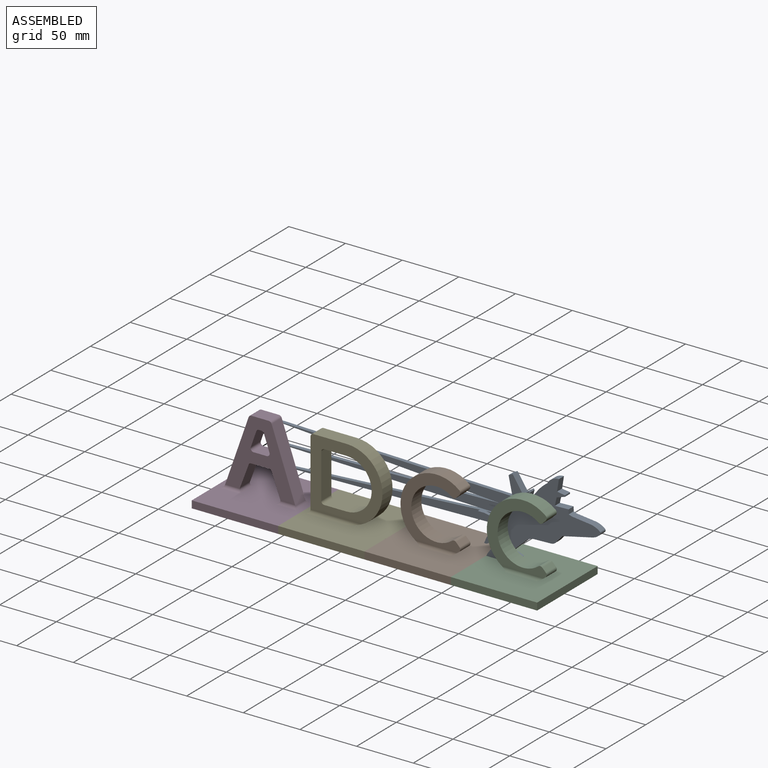
[diagram: assembled view]
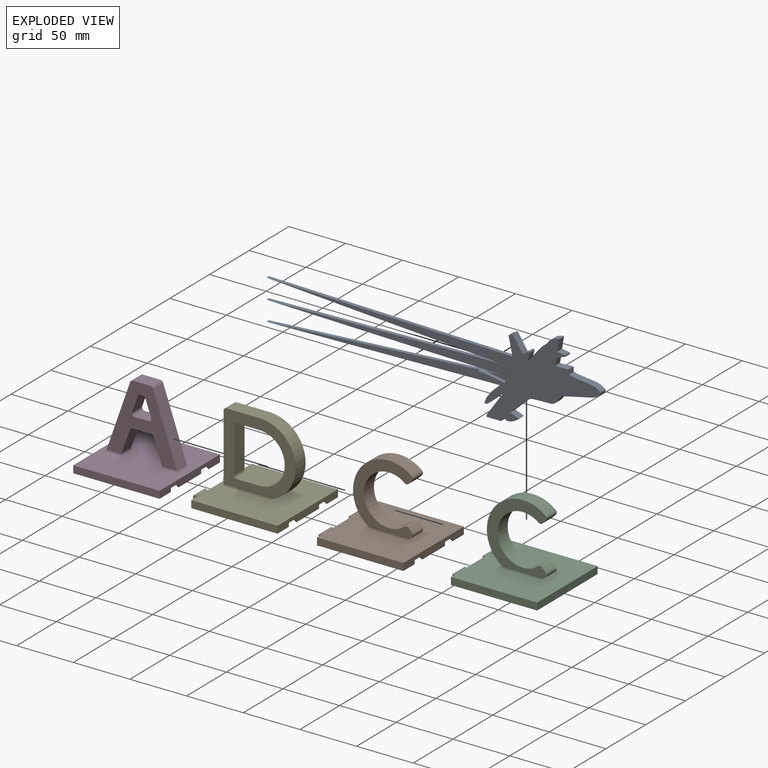
[diagram: exploded view]
GUIDED TOUR — MATED ASSEMBLY WITH SUBASSEMBLIES (Onshape document de072a0fe9083e086dc689bb, AutoMate assembly de072a0fe9083e086dc689bb_81432984981ec0570d0138be_d6e853bb6b05773cb9a21b95_default)

This assembly has 6 component occurrences arranged in 5 top-level units: 4 individual components plus 1 subassembly (S0). The tour has two levels: first the top level, where each subassembly is treated as one rigid unit; then each subassembly is toured internally in its own section (nesting deeper than one subassembly level is flattened into its subassembly's section).

Components are labeled P0..P5 across the whole record; subassembly units are labeled S0..S0. A mate is a constraint between two units; its type names the relative motion it leaves free:
  FASTENED — locks the two components together rigidly (no relative motion).
Axis/direction vectors are unit vectors and 'through' points are millimeter coordinates, both in the assembly's world frame.

TOP-LEVEL MATES (between units; each subassembly's internal mates are listed in its own section)
  1. FASTENED "Fastened 2": P2 <-> P5, direction (-1.000, 0.000, 0.000) through (21.46, -75.15, 36.04) mm
  2. FASTENED "Fastened 3": P3 <-> P2, direction (-1.000, 0.000, 0.000) through (97.66, -75.15, 36.04) mm
  3. FASTENED "Fastened 4": S0 <-> P3, direction (0.000, 0.000, -1.000) through (110.56, -46.37, 41.60) mm
  4. FASTENED "Fastened 1": P4 <-> P5, direction (0.000, -1.000, 0.000) through (-48.39, -94.20, 39.22) mm

TOP-LEVEL ASSEMBLY ORDER
  1. P3 — the base component [order verified]
  2. P2 [order verified]
  3. P5 [order verified]
  4. P4 [order verified]
  5. S0 [order verified]
Order-tag legend:
  [order verified] — this step's position reverses a verified removal order: the component was checked to insert without passing through the ones already placed.

Of the 6 component occurrences, 4 carry the full construction recipe — the FeatureScript program that regenerates the part's solid from scratch; the rest are supplied as boundary geometry only. Each toured unit is shown spotlighted twice — assembled, then exploded with a leader line back to its socket (green = recipe-attached component, orange = geometry-only, blue = subassembly unit; the rest desaturated gray).
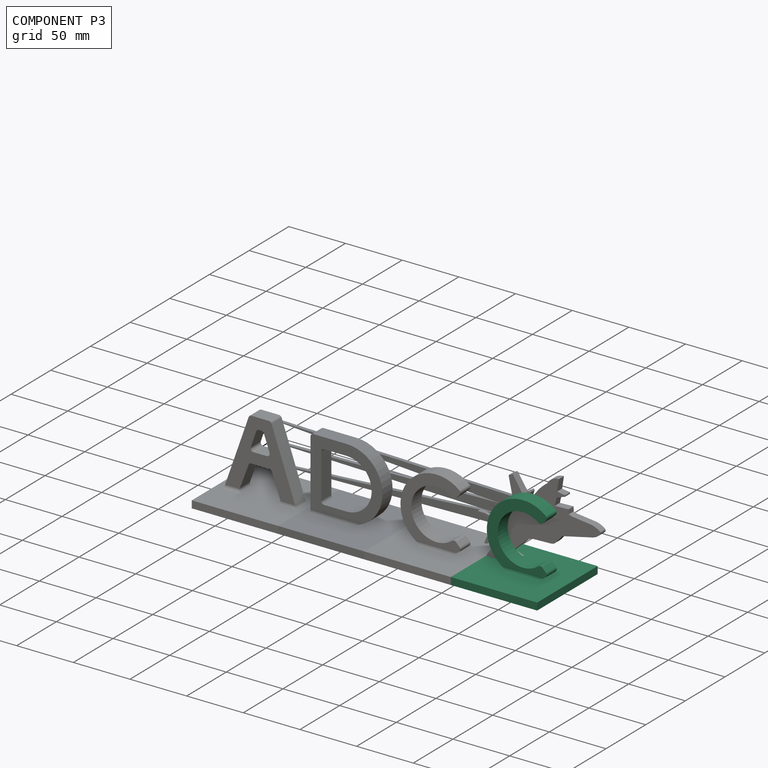
[diagram: component P3 — assembled]
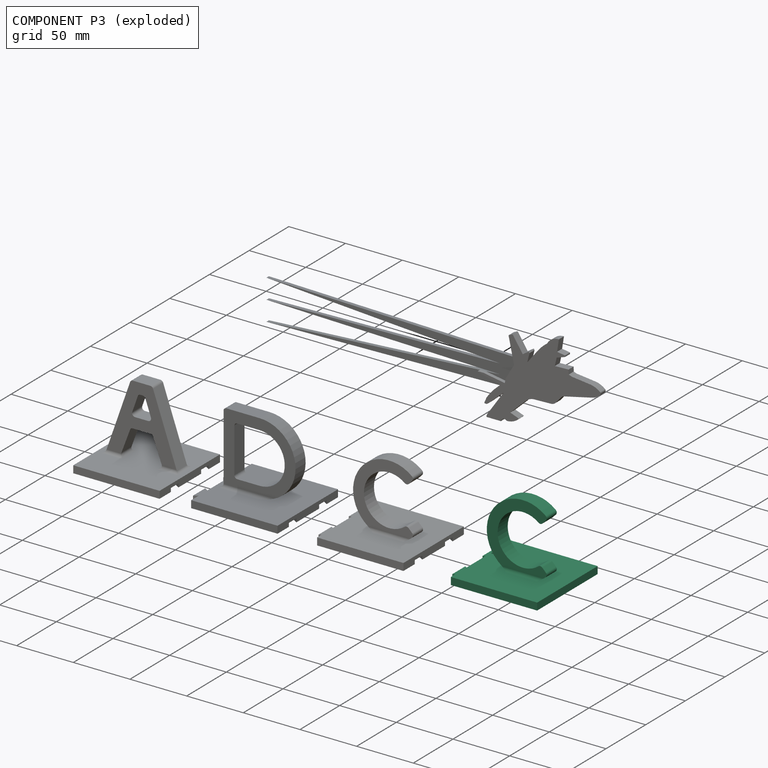
[diagram: component P3 — exploded]
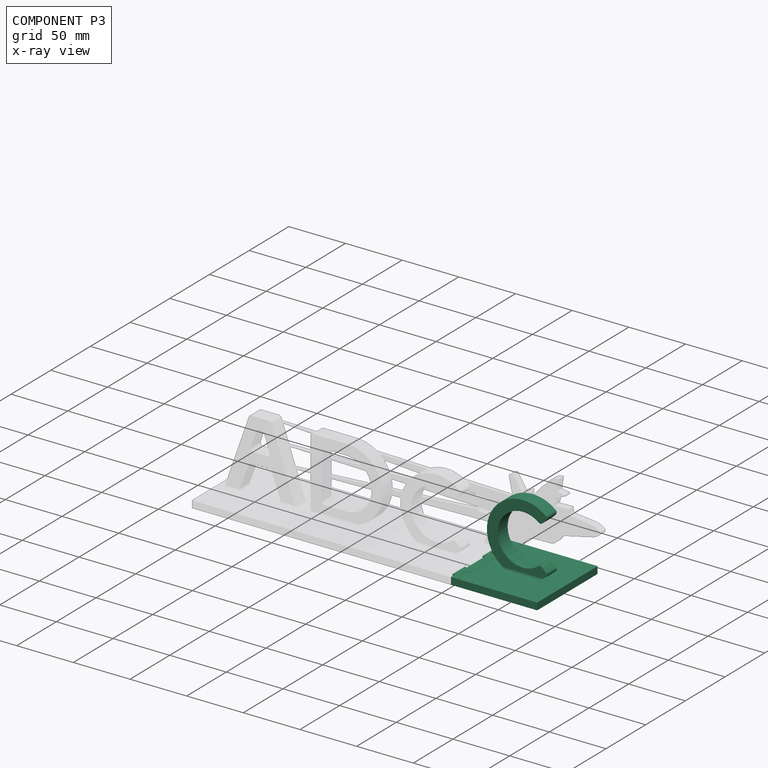
[diagram: component P3 — x-ray view]
COMPONENT P3 — recipe-attached (CADFS 00996907, mesh-verified: the recipe's output STEP matches this component's geometry to below the mesh-comparison resolution (tessellation chordal tolerance ~0.196 mm)).
Held by: FASTENED mate "Fastened 3" to P2; FASTENED mate "Fastened 4" to P0.
Construction recipe (FeatureScript — the CAD program that rebuilds this solid; sketch coordinates are in the units given by the * unit suffixes, e.g. mm):

FeatureScript 1511;
import(path : "onshape/std/geometry.fs", version : "1511.0");
import(path : "onshape/std/common.fs", version : "1511.0");
const mm = millimeter;
const VERTEX = EntityType.VERTEX;
const EDGE = EntityType.EDGE;
const FACE = EntityType.FACE;
const BODY = EntityType.BODY;
function v(x, y){return vector(x, y);}
function OD(order){return orderDisambiguation(order);}
function OSD(set){return originalSetDisambiguation(set);}
function TD(topology){return topologyDisambiguation(topology);}
function TDD(query){return trueDependencyDisambiguation(query);}
function sQuery(a, b, c) {return sketchEntityQuery(a, b, c);}

annotation { "Feature Type Name" : "Feature", "Feature Type Description" : "" }
export const myFeature = defineFeature(function(context is Context, id is Id, definition is map)
    precondition{}
    {
        {
            var Q0;
            Q0=qCreatedBy(makeId("Top.planeOp"),FACE);
            var sketch = newSketch(context, id + "F0", { "sketchPlane" : qUnion([Q0])});
            skLineSegment(sketch, "E0.bottom", {"start": v(38.1, -38.1) * mm, "end": v(-38.1, -38.1) * mm});
            skLineSegment(sketch, "E0.top", {"start": v(38.1, 38.1) * mm, "end": v(-38.1, 38.1) * mm});
            skLineSegment(sketch, "E0.left", {"start": v(38.1, -38.1) * mm, "end": v(38.1, 38.1) * mm});
            skLineSegment(sketch, "E0.right", {"start": v(-38.1, -38.1) * mm, "end": v(-38.1, 38.1) * mm});
            skPoint(sketch, "E0.middle", {"position": v(0, 0) * mm});
            skSolve(sketch);
        }
        {
            var Q0;
            Q0=qCreatedBy(makeId("Front.planeOp"),FACE);
            var sketch = newSketch(context, id + "F1", { "sketchPlane" : qUnion([Q0])});
            skArc(sketch, "E1", {"start": v(25.4, 51.25) * mm, "mid": v(-28.58, 28.58) * mm, "end": v(25.4, 5.9) * mm});
            skLineSegment(sketch, "E2", {"start": v(16.41, 60.33) * mm, "end": v(-26.64, 60.33) * mm, "construction": true});
            skLineSegment(sketch, "E3", {"start": v(-19.56, -3.18) * mm, "end": v(26.32, -3.17) * mm, "construction": true});
            skArc(sketch, "E4", {"start": v(18.73, 44.45) * mm, "mid": v(-19.05, 28.58) * mm, "end": v(18.73, 12.7) * mm});
            skLineSegment(sketch, "E5", {"start": v(25.4, 51.25) * mm, "end": v(18.73, 44.45) * mm});
            skLineSegment(sketch, "E6", {"start": v(18.73, 12.7) * mm, "end": v(25.4, 5.9) * mm});
            skLineSegment(sketch, "E7", {"start": v(18.73, 44.45) * mm, "end": v(34.7, 28.8) * mm, "construction": true});
            skSolve(sketch);
        }
        {
            var Q0;
            Q0=qSketchRegion(id+"F0",true);
            extrude(context, id + "F2", {"entities" : qUnion([Q0]), "oppositeDirection" : true, "depth" : 6.35 * mm, "offsetDistance" : 25.4 * mm});
        }
        {
            var Q0;
            Q0=qSketchRegion(id+"F1",true);
            extrude(context, id + "F3", {"entities" : qUnion([Q0]), "operationType" : NewBodyOperationType.ADD, "endBound" : BoundingType.SYMMETRIC, "depth" : 12.7 * mm, "offsetDistance" : 25.4 * mm});
        }
        {
            var Q0;
            Q0=makeQuery(id+"F3.opExtrude","SWEPT_EDGE",EDGE,{"disambiguationData":[OSD([sQuery(id+"F1.wireOp",EDGE,"E1"),sQuery(id+"F1.wireOp",EDGE,"E5")])]});
            var Q1;
            Q1=makeQuery(id+"F3.opExtrude","SWEPT_EDGE",EDGE,{"disambiguationData":[OSD([sQuery(id+"F1.wireOp",EDGE,"E4"),sQuery(id+"F1.wireOp",EDGE,"E5")])]});
            var Q2;
            Q2=makeQuery(id+"F3.opExtrude","SWEPT_EDGE",EDGE,{"disambiguationData":[OSD([sQuery(id+"F1.wireOp",EDGE,"E4"),sQuery(id+"F1.wireOp",EDGE,"E6")])]});
            var Q3;
            Q3=makeQuery(id+"F3.opExtrude","SWEPT_EDGE",EDGE,{"disambiguationData":[OSD([sQuery(id+"F1.wireOp",EDGE,"E1"),sQuery(id+"F1.wireOp",EDGE,"E6")])]});
            var Q4;
            Q4=makeQuery(id+"F3.boolean.opBoolean","INTERSECT",EDGE,{"derivedFrom":[makeQuery(id+"F2.opExtrude","CAP_FACE",FACE,{"disambiguationData":[OSD([sQuery(id+"F0.wireOp",EDGE,"E0.bottom"),sQuery(id+"F0.wireOp",EDGE,"E0.top"),sQuery(id+"F0.wireOp",EDGE,"E0.left"),sQuery(id+"F0.wireOp",EDGE,"E0.right")])],"isStart":true}),makeQuery(id+"F3.opExtrude","CAP_FACE",FACE,{"disambiguationData":[OSD([sQuery(id+"F1.wireOp",EDGE,"E1"),sQuery(id+"F1.wireOp",EDGE,"E4"),sQuery(id+"F1.wireOp",EDGE,"E5"),sQuery(id+"F1.wireOp",EDGE,"E6")])],"isStart":false})]});
            var Q5;
            Q5=makeQuery(id+"F3.boolean.opBoolean","INTERSECT",EDGE,{"derivedFrom":[makeQuery(id+"F2.opExtrude","CAP_FACE",FACE,{"disambiguationData":[OSD([sQuery(id+"F0.wireOp",EDGE,"E0.bottom"),sQuery(id+"F0.wireOp",EDGE,"E0.top"),sQuery(id+"F0.wireOp",EDGE,"E0.left"),sQuery(id+"F0.wireOp",EDGE,"E0.right")])],"isStart":true}),makeQuery(id+"F3.opExtrude","CAP_FACE",FACE,{"disambiguationData":[OSD([sQuery(id+"F1.wireOp",EDGE,"E1"),sQuery(id+"F1.wireOp",EDGE,"E4"),sQuery(id+"F1.wireOp",EDGE,"E5"),sQuery(id+"F1.wireOp",EDGE,"E6")])],"isStart":true})]});
            fillet(context, id + "F4", {"entities" : qUnion([Q0, Q1, Q2, Q3, Q4, Q5]), "radius" : 2.54 * mm, "tangentPropagation" : true, "allowEdgeOverflow" : false});
        }
        {
            var Q0;
            Q0=makeQuery(id+"F2.opExtrude","CAP_FACE",FACE,{"disambiguationData":[OSD([sQuery(id+"F0.wireOp",EDGE,"E0.bottom"),sQuery(id+"F0.wireOp",EDGE,"E0.top"),sQuery(id+"F0.wireOp",EDGE,"E0.left"),sQuery(id+"F0.wireOp",EDGE,"E0.right")])],"isStart":false});
            var sketch = newSketch(context, id + "F5", { "sketchPlane" : qUnion([Q0])});
            skLineSegment(sketch, "E8", {"start": v(-38.1, 23.61) * mm, "end": v(-38.1, 14.49) * mm});
            skLineSegment(sketch, "E9", {"start": v(-38.1, 14.49) * mm, "end": v(-44.45, 10.82) * mm});
            skLineSegment(sketch, "E10", {"start": v(-44.45, 10.82) * mm, "end": v(-44.45, 27.28) * mm});
            skLineSegment(sketch, "E11", {"start": v(-44.45, 27.28) * mm, "end": v(-38.1, 23.61) * mm});
            skLineSegment(sketch, "E12", {"start": v(-38.1, 19.05) * mm, "end": v(-38.1, 38.1) * mm, "construction": true});
            skLineSegment(sketch, "E13.MirrorCS", {"start": v(-38.1, -14.49) * mm, "end": v(-44.45, -10.82) * mm});
            skLineSegment(sketch, "E14.MirrorCS", {"start": v(-44.45, -10.82) * mm, "end": v(-44.45, -27.28) * mm});
            skLineSegment(sketch, "E15.MirrorCS", {"start": v(-38.1, -23.61) * mm, "end": v(-38.1, -14.49) * mm});
            skLineSegment(sketch, "E16.MirrorCS", {"start": v(-44.45, -27.28) * mm, "end": v(-38.1, -23.61) * mm});
            skSolve(sketch);
        }
        {
            var Q0;
            Q0=qSketchRegion(id+"F5",true);
            extrude(context, id + "F6", {"entities" : qUnion([Q0]), "operationType" : NewBodyOperationType.ADD, "oppositeDirection" : true, "depth" : 2.78 * mm, "offsetDistance" : 25.4 * mm});
        }
        {
            var Q0;
            Q0=makeQuery(id+"F2.opExtrude","CAP_FACE",FACE,{"disambiguationData":[OSD([sQuery(id+"F0.wireOp",EDGE,"E0.bottom"),sQuery(id+"F0.wireOp",EDGE,"E0.top"),sQuery(id+"F0.wireOp",EDGE,"E0.left"),sQuery(id+"F0.wireOp",EDGE,"E0.right")])],"isStart":true});
            var sketch = newSketch(context, id + "F7", { "sketchPlane" : qUnion([Q0])});
            skLineSegment(sketch, "E17", {"start": v(-38.1, 6.35) * mm, "end": v(38.1, 6.35) * mm, "construction": true});
            skLineSegment(sketch, "E18.bottom", {"start": v(-38.1, 6.35) * mm, "end": v(-25, 6.35) * mm});
            skLineSegment(sketch, "E18.top", {"start": v(-38.1, 13.1) * mm, "end": v(-25, 13.1) * mm});
            skLineSegment(sketch, "E18.left", {"start": v(-38.1, 6.35) * mm, "end": v(-38.1, 13.1) * mm});
            skLineSegment(sketch, "E18.right", {"start": v(-25, 6.35) * mm, "end": v(-25, 13.1) * mm});
            skSolve(sketch);
        }
        {
            var Q0;
            Q0 = qSketchRegion(id + "F7", true);
            extrude(context, id + "F8", {"entities" : qUnion([Q0]), "operationType" : NewBodyOperationType.REMOVE, "oppositeDirection" : true, "depth" : 0.8 * mm, "offsetDistance" : 25.4 * mm});
        }
    });
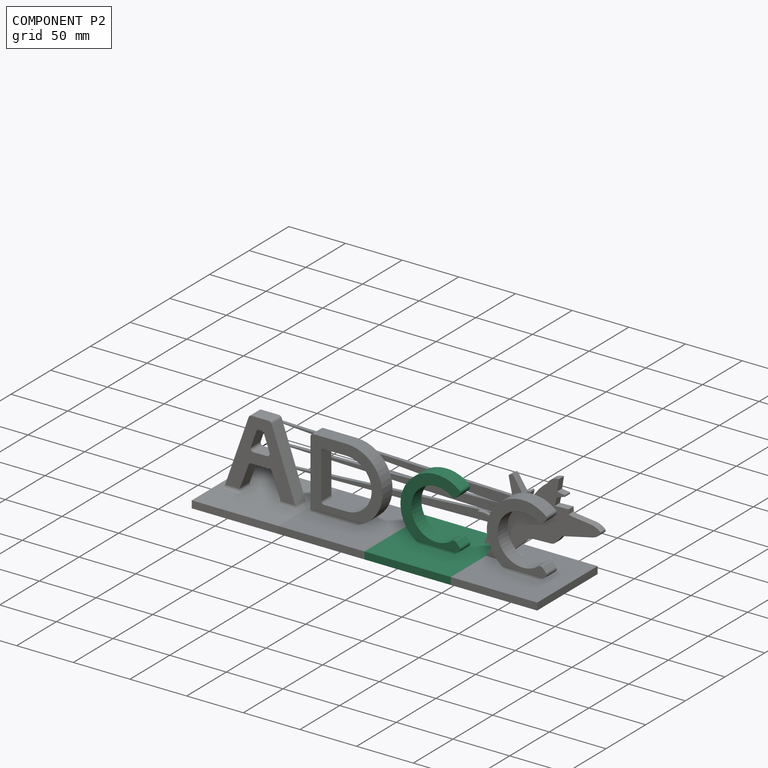
[diagram: component P2 — assembled]
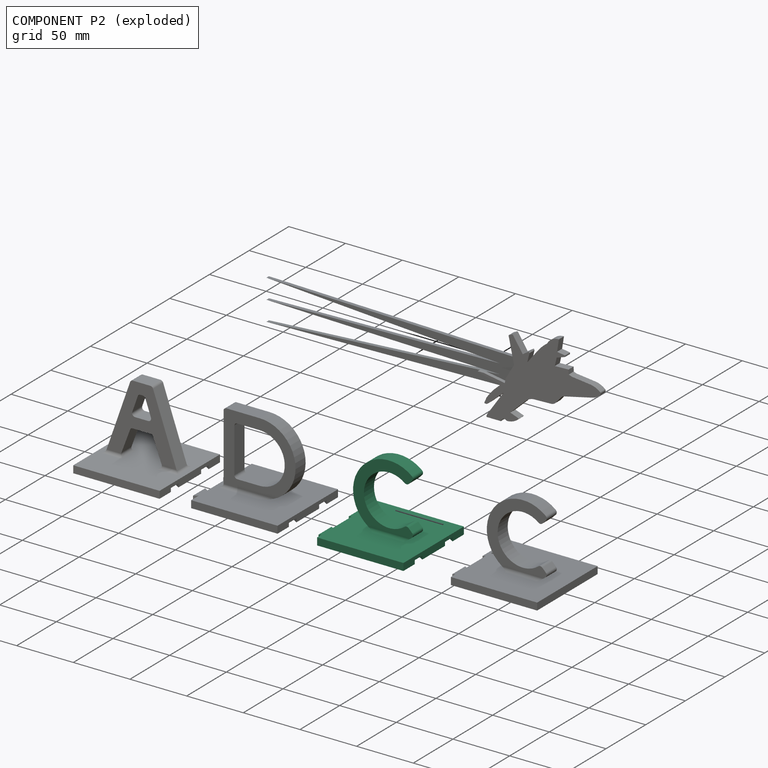
[diagram: component P2 — exploded]
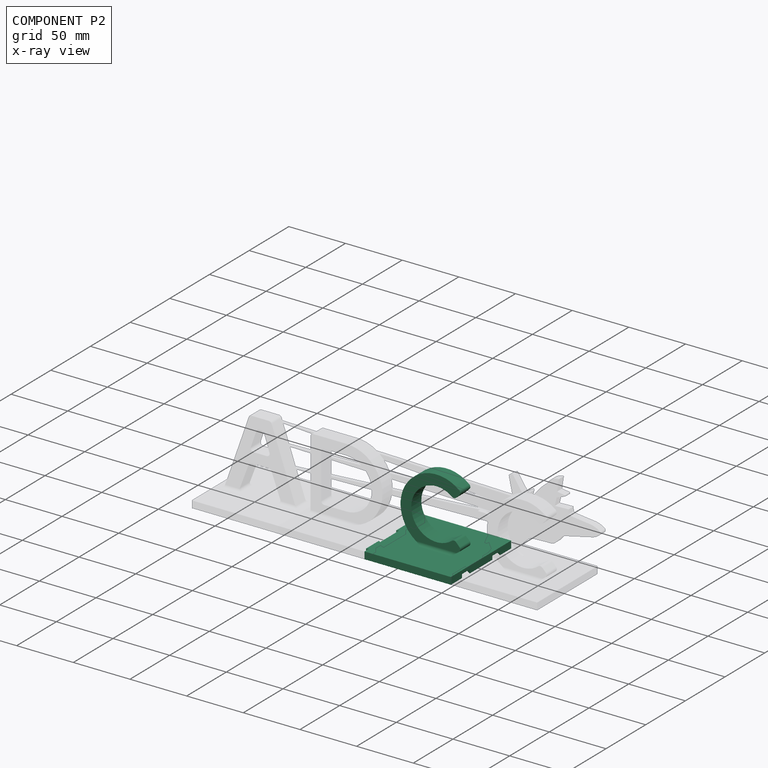
[diagram: component P2 — x-ray view]
COMPONENT P2 — recipe-attached (CADFS 00996906, mesh-verified: the recipe's output STEP matches this component's geometry to below the mesh-comparison resolution (tessellation chordal tolerance ~0.196 mm)).
Held by: FASTENED mate "Fastened 2" to P5; FASTENED mate "Fastened 3" to P3.
Construction recipe (FeatureScript — the CAD program that rebuilds this solid; sketch coordinates are in the units given by the * unit suffixes, e.g. mm):

FeatureScript 1511;
import(path : "onshape/std/geometry.fs", version : "1511.0");
import(path : "onshape/std/common.fs", version : "1511.0");
const mm = millimeter;
const VERTEX = EntityType.VERTEX;
const EDGE = EntityType.EDGE;
const FACE = EntityType.FACE;
const BODY = EntityType.BODY;
function v(x, y){return vector(x, y);}
function OD(order){return orderDisambiguation(order);}
function OSD(set){return originalSetDisambiguation(set);}
function TD(topology){return topologyDisambiguation(topology);}
function TDD(query){return trueDependencyDisambiguation(query);}
function sQuery(a, b, c) {return sketchEntityQuery(a, b, c);}

annotation { "Feature Type Name" : "Feature", "Feature Type Description" : "" }
export const myFeature = defineFeature(function(context is Context, id is Id, definition is map)
    precondition{}
    {
        {
            var Q0;
            Q0=qCreatedBy(makeId("Top.planeOp"),FACE);
            var sketch = newSketch(context, id + "F0", { "sketchPlane" : qUnion([Q0])});
            skLineSegment(sketch, "E0.bottom", {"start": v(38.1, -38.1) * mm, "end": v(-38.1, -38.1) * mm});
            skLineSegment(sketch, "E0.top", {"start": v(38.1, 38.1) * mm, "end": v(-38.1, 38.1) * mm});
            skLineSegment(sketch, "E0.left", {"start": v(38.1, -38.1) * mm, "end": v(38.1, 38.1) * mm});
            skLineSegment(sketch, "E0.right", {"start": v(-38.1, -38.1) * mm, "end": v(-38.1, 38.1) * mm});
            skPoint(sketch, "E0.middle", {"position": v(0, 0) * mm});
            skSolve(sketch);
        }
        {
            var Q0;
            Q0=qCreatedBy(makeId("Front.planeOp"),FACE);
            var sketch = newSketch(context, id + "F1", { "sketchPlane" : qUnion([Q0])});
            skArc(sketch, "E1", {"start": v(25.4, 51.25) * mm, "mid": v(-28.58, 28.58) * mm, "end": v(25.4, 5.9) * mm});
            skLineSegment(sketch, "E2", {"start": v(16.41, 60.33) * mm, "end": v(-26.64, 60.33) * mm, "construction": true});
            skLineSegment(sketch, "E3", {"start": v(-19.56, -3.18) * mm, "end": v(26.32, -3.17) * mm, "construction": true});
            skArc(sketch, "E4", {"start": v(18.73, 44.45) * mm, "mid": v(-19.05, 28.58) * mm, "end": v(18.73, 12.7) * mm});
            skLineSegment(sketch, "E5", {"start": v(25.4, 51.25) * mm, "end": v(18.73, 44.45) * mm});
            skLineSegment(sketch, "E6", {"start": v(18.73, 12.7) * mm, "end": v(25.4, 5.9) * mm});
            skLineSegment(sketch, "E7", {"start": v(18.73, 44.45) * mm, "end": v(34.7, 28.8) * mm, "construction": true});
            skSolve(sketch);
        }
        {
            var Q0;
            Q0=qSketchRegion(id+"F0",true);
            extrude(context, id + "F2", {"entities" : qUnion([Q0]), "oppositeDirection" : true, "depth" : 6.35 * mm, "offsetDistance" : 25.4 * mm});
        }
        {
            var Q0;
            Q0=qSketchRegion(id+"F1",true);
            extrude(context, id + "F3", {"entities" : qUnion([Q0]), "operationType" : NewBodyOperationType.ADD, "endBound" : BoundingType.SYMMETRIC, "depth" : 12.7 * mm, "offsetDistance" : 25.4 * mm});
        }
        {
            var Q0;
            Q0=makeQuery(id+"F3.opExtrude","SWEPT_EDGE",EDGE,{"disambiguationData":[OSD([sQuery(id+"F1.wireOp",EDGE,"E1"),sQuery(id+"F1.wireOp",EDGE,"E5")])]});
            var Q1;
            Q1=makeQuery(id+"F3.opExtrude","SWEPT_EDGE",EDGE,{"disambiguationData":[OSD([sQuery(id+"F1.wireOp",EDGE,"E4"),sQuery(id+"F1.wireOp",EDGE,"E5")])]});
            var Q2;
            Q2=makeQuery(id+"F3.opExtrude","SWEPT_EDGE",EDGE,{"disambiguationData":[OSD([sQuery(id+"F1.wireOp",EDGE,"E4"),sQuery(id+"F1.wireOp",EDGE,"E6")])]});
            var Q3;
            Q3=makeQuery(id+"F3.opExtrude","SWEPT_EDGE",EDGE,{"disambiguationData":[OSD([sQuery(id+"F1.wireOp",EDGE,"E1"),sQuery(id+"F1.wireOp",EDGE,"E6")])]});
            var Q4;
            Q4=makeQuery(id+"F3.boolean.opBoolean","INTERSECT",EDGE,{"derivedFrom":[makeQuery(id+"F2.opExtrude","CAP_FACE",FACE,{"disambiguationData":[OSD([sQuery(id+"F0.wireOp",EDGE,"E0.bottom"),sQuery(id+"F0.wireOp",EDGE,"E0.top"),sQuery(id+"F0.wireOp",EDGE,"E0.left"),sQuery(id+"F0.wireOp",EDGE,"E0.right")])],"isStart":true}),makeQuery(id+"F3.opExtrude","CAP_FACE",FACE,{"disambiguationData":[OSD([sQuery(id+"F1.wireOp",EDGE,"E1"),sQuery(id+"F1.wireOp",EDGE,"E4"),sQuery(id+"F1.wireOp",EDGE,"E5"),sQuery(id+"F1.wireOp",EDGE,"E6")])],"isStart":false})]});
            var Q5;
            Q5=makeQuery(id+"F3.boolean.opBoolean","INTERSECT",EDGE,{"derivedFrom":[makeQuery(id+"F2.opExtrude","CAP_FACE",FACE,{"disambiguationData":[OSD([sQuery(id+"F0.wireOp",EDGE,"E0.bottom"),sQuery(id+"F0.wireOp",EDGE,"E0.top"),sQuery(id+"F0.wireOp",EDGE,"E0.left"),sQuery(id+"F0.wireOp",EDGE,"E0.right")])],"isStart":true}),makeQuery(id+"F3.opExtrude","CAP_FACE",FACE,{"disambiguationData":[OSD([sQuery(id+"F1.wireOp",EDGE,"E1"),sQuery(id+"F1.wireOp",EDGE,"E4"),sQuery(id+"F1.wireOp",EDGE,"E5"),sQuery(id+"F1.wireOp",EDGE,"E6")])],"isStart":true})]});
            fillet(context, id + "F4", {"entities" : qUnion([Q0, Q1, Q2, Q3, Q4, Q5]), "radius" : 2.54 * mm, "tangentPropagation" : true, "allowEdgeOverflow" : false});
        }
        {
            var Q0;
            Q0=makeQuery(id+"F2.opExtrude","CAP_FACE",FACE,{"disambiguationData":[OSD([sQuery(id+"F0.wireOp",EDGE,"E0.bottom"),sQuery(id+"F0.wireOp",EDGE,"E0.top"),sQuery(id+"F0.wireOp",EDGE,"E0.left"),sQuery(id+"F0.wireOp",EDGE,"E0.right")])],"isStart":false});
            var sketch = newSketch(context, id + "F5", { "sketchPlane" : qUnion([Q0])});
            skLineSegment(sketch, "E8", {"start": v(38.1, 23.81) * mm, "end": v(31.75, 27.48) * mm});
            skLineSegment(sketch, "E9", {"start": v(31.75, 27.48) * mm, "end": v(31.75, 10.62) * mm});
            skLineSegment(sketch, "E10", {"start": v(31.75, 10.62) * mm, "end": v(38.1, 14.29) * mm});
            skLineSegment(sketch, "E11", {"start": v(38.1, 14.29) * mm, "end": v(38.1, 23.81) * mm});
            skLineSegment(sketch, "E12", {"start": v(38.1, 19.05) * mm, "end": v(38.1, 38.1) * mm, "construction": true});
            skLineSegment(sketch, "E13.MirrorCS", {"start": v(31.75, -27.48) * mm, "end": v(31.75, -10.62) * mm});
            skLineSegment(sketch, "E14.MirrorCS", {"start": v(38.1, -23.81) * mm, "end": v(31.75, -27.48) * mm});
            skLineSegment(sketch, "E15.MirrorCS", {"start": v(38.1, -14.29) * mm, "end": v(38.1, -23.81) * mm});
            skLineSegment(sketch, "E16.MirrorCS", {"start": v(31.75, -10.62) * mm, "end": v(38.1, -14.29) * mm});
            skSolve(sketch);
        }
        {
            var Q0;
            Q0=qSketchRegion(id+"F5",true);
            extrude(context, id + "F6", {"entities" : qUnion([Q0]), "operationType" : NewBodyOperationType.REMOVE, "oppositeDirection" : true, "depth" : 3.17 * mm, "offsetDistance" : 25.4 * mm});
        }
        {
            var Q0;
            Q0=makeQuery(id+"F2.opExtrude","CAP_FACE",FACE,{"disambiguationData":[OSD([sQuery(id+"F0.wireOp",EDGE,"E0.bottom"),sQuery(id+"F0.wireOp",EDGE,"E0.top"),sQuery(id+"F0.wireOp",EDGE,"E0.left"),sQuery(id+"F0.wireOp",EDGE,"E0.right")])],"isStart":false});
            var sketch = newSketch(context, id + "F7", { "sketchPlane" : qUnion([Q0])});
            skLineSegment(sketch, "E17", {"start": v(-38.1, 23.61) * mm, "end": v(-38.1, 14.49) * mm});
            skLineSegment(sketch, "E18", {"start": v(-38.1, 14.49) * mm, "end": v(-44.45, 10.82) * mm});
            skLineSegment(sketch, "E19", {"start": v(-44.45, 10.82) * mm, "end": v(-44.45, 27.28) * mm});
            skLineSegment(sketch, "E20", {"start": v(-44.45, 27.28) * mm, "end": v(-38.1, 23.61) * mm});
            skLineSegment(sketch, "E21", {"start": v(-38.1, 19.05) * mm, "end": v(-38.1, 38.1) * mm, "construction": true});
            skLineSegment(sketch, "E22.MirrorCS", {"start": v(-38.1, -14.49) * mm, "end": v(-44.45, -10.82) * mm});
            skLineSegment(sketch, "E23.MirrorCS", {"start": v(-44.45, -10.82) * mm, "end": v(-44.45, -27.28) * mm});
            skLineSegment(sketch, "E24.MirrorCS", {"start": v(-38.1, -23.61) * mm, "end": v(-38.1, -14.49) * mm});
            skLineSegment(sketch, "E25.MirrorCS", {"start": v(-44.45, -27.28) * mm, "end": v(-38.1, -23.61) * mm});
            skSolve(sketch);
        }
        {
            var Q0;
            Q0 = qSketchRegion(id + "F7", true);
            extrude(context, id + "F8", {"entities" : qUnion([Q0]), "operationType" : NewBodyOperationType.ADD, "oppositeDirection" : true, "depth" : 2.78 * mm, "offsetDistance" : 25.4 * mm});
        }
    });
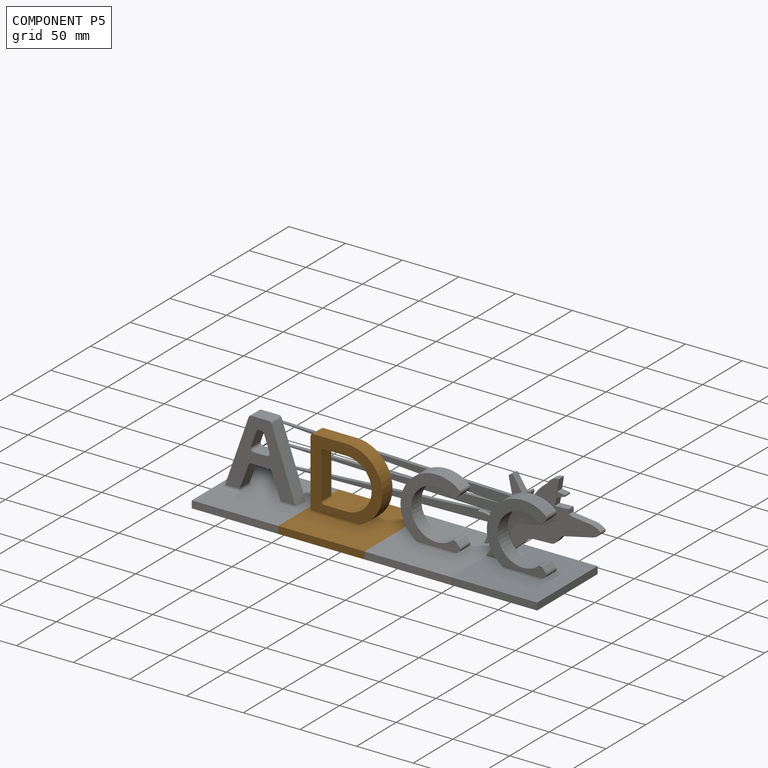
[diagram: component P5 — assembled]
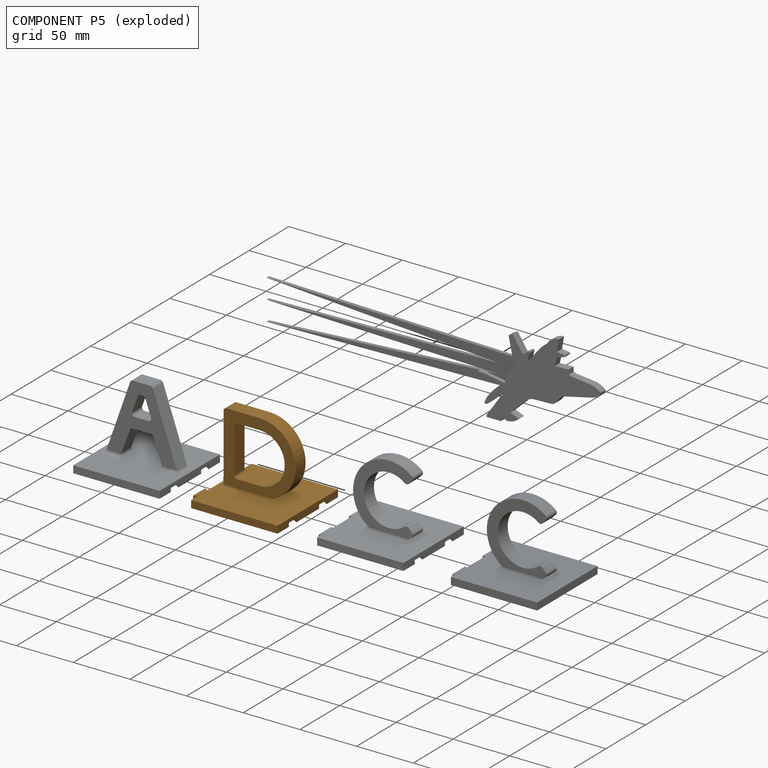
[diagram: component P5 — exploded]
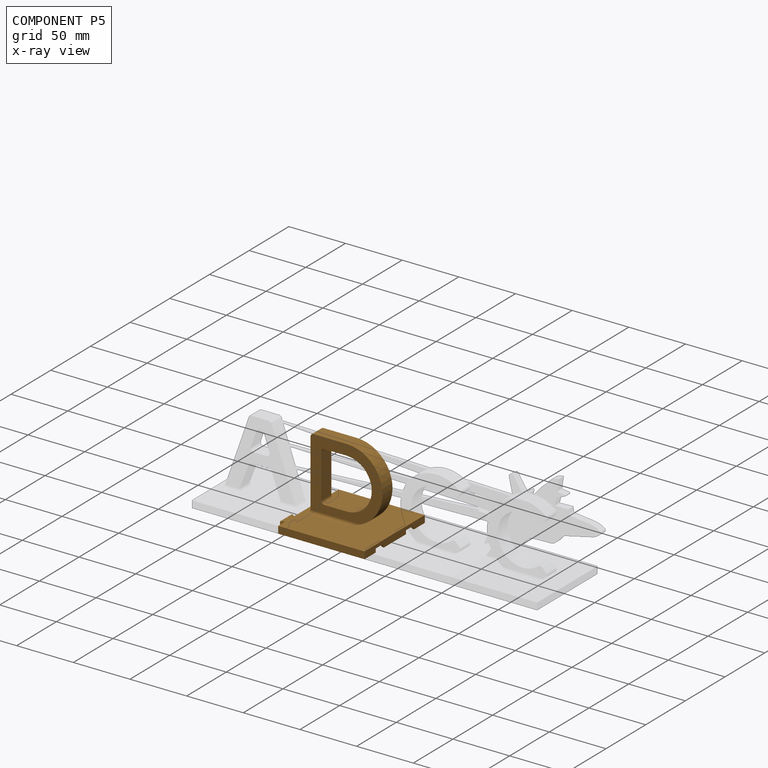
[diagram: component P5 — x-ray view]
COMPONENT P5 — geometry summary (no construction recipe available for this part):
  bounding box: 82.6 x 76.2 x 69.9 mm
  B-rep topology: 1 solid, 37 faces, 200 edges
  volume: 60379 mm^3 (14% of its bounding box)
  symmetry: mirror-symmetric across its y mid-plane
Held by: FASTENED mate "Fastened 2" to P2; FASTENED mate "Fastened 1" to P4.
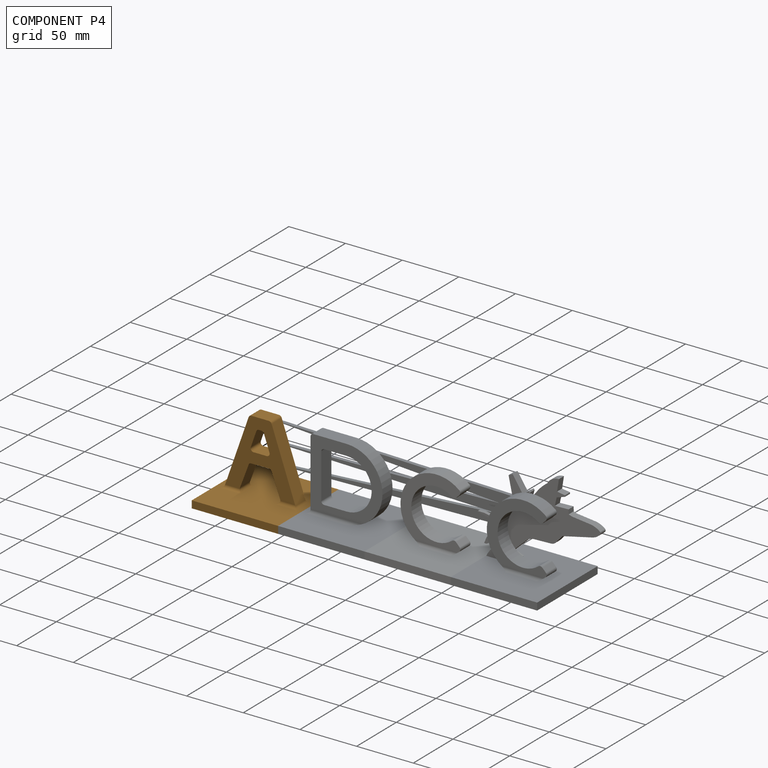
[diagram: component P4 — assembled]
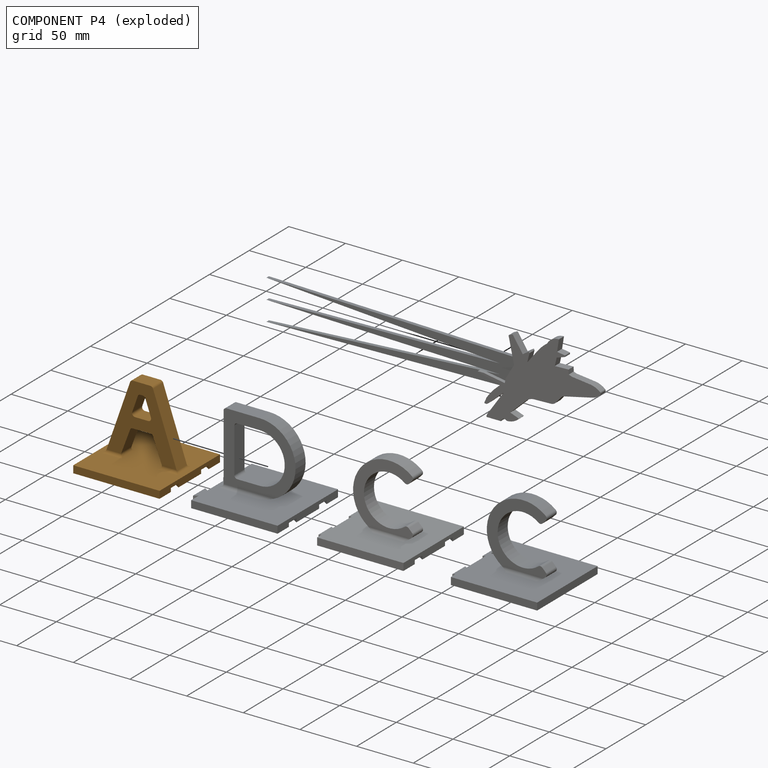
[diagram: component P4 — exploded]
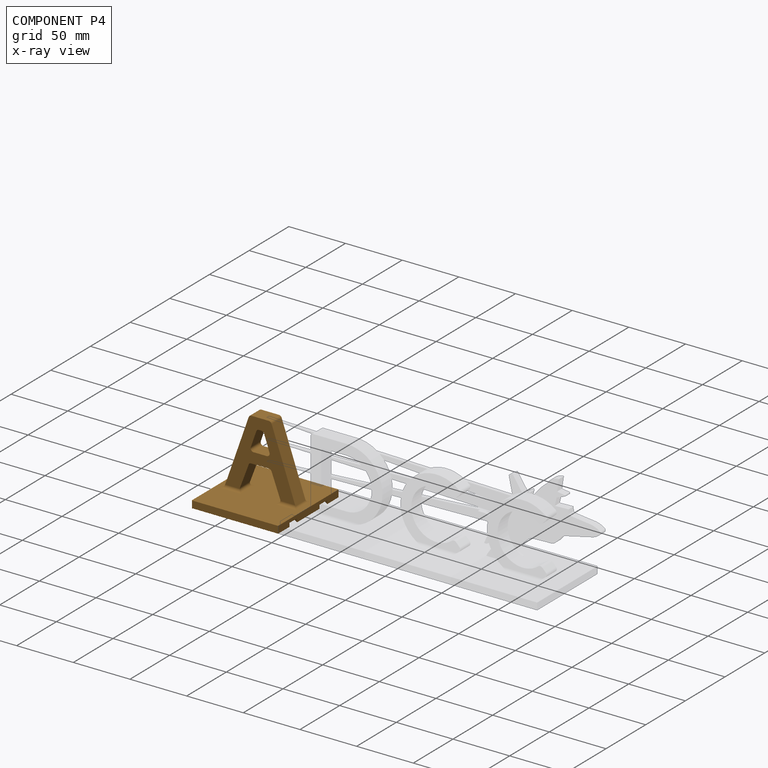
[diagram: component P4 — x-ray view]
COMPONENT P4 — geometry summary (no construction recipe available for this part):
  bounding box: 76.2 x 76.2 x 69.9 mm
  B-rep topology: 1 solid, 42 faces, 240 edges
  volume: 57723 mm^3 (14% of its bounding box)
  symmetry: mirror-symmetric across its y mid-plane
Held by: FASTENED mate "Fastened 1" to P5.
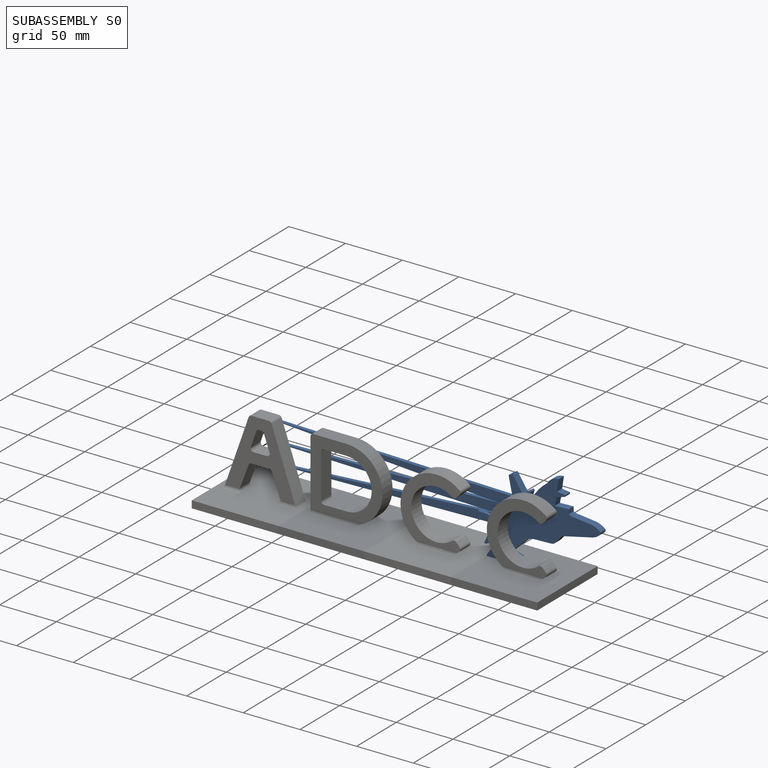
[diagram: subassembly S0 — assembled]
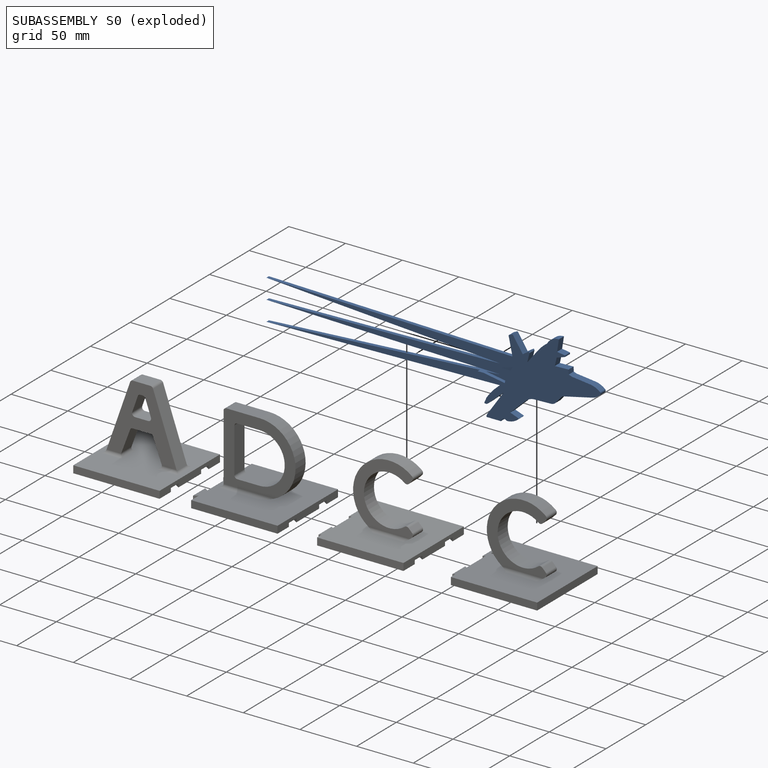
[diagram: subassembly S0 — exploded]
SUBASSEMBLY S0 — 2 components (P0, P1), of which 2 recipe-attached; toured below.
Held by: FASTENED mate "Fastened 4" to P3.
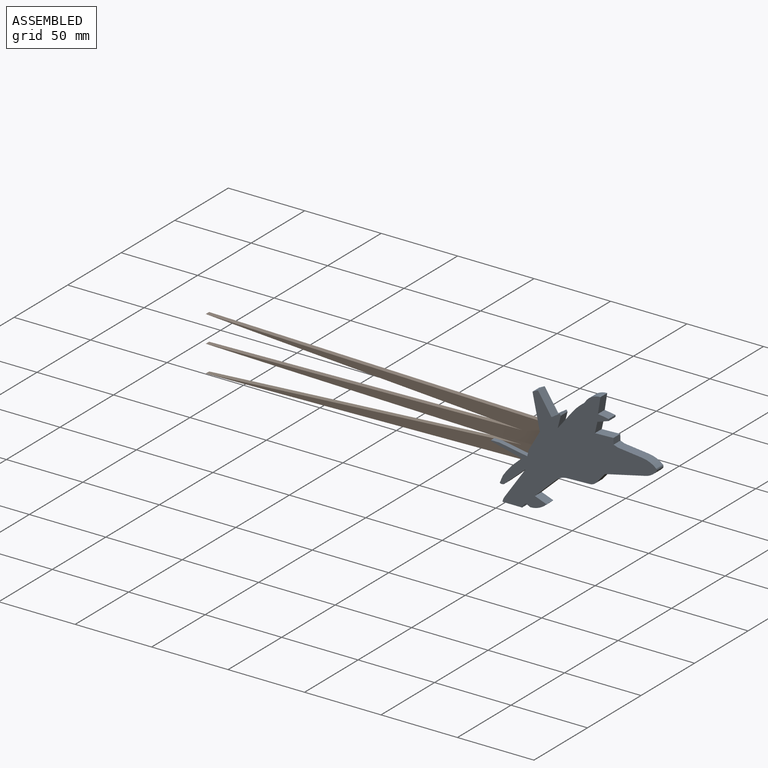
[diagram: subassembly S0 — assembled view]
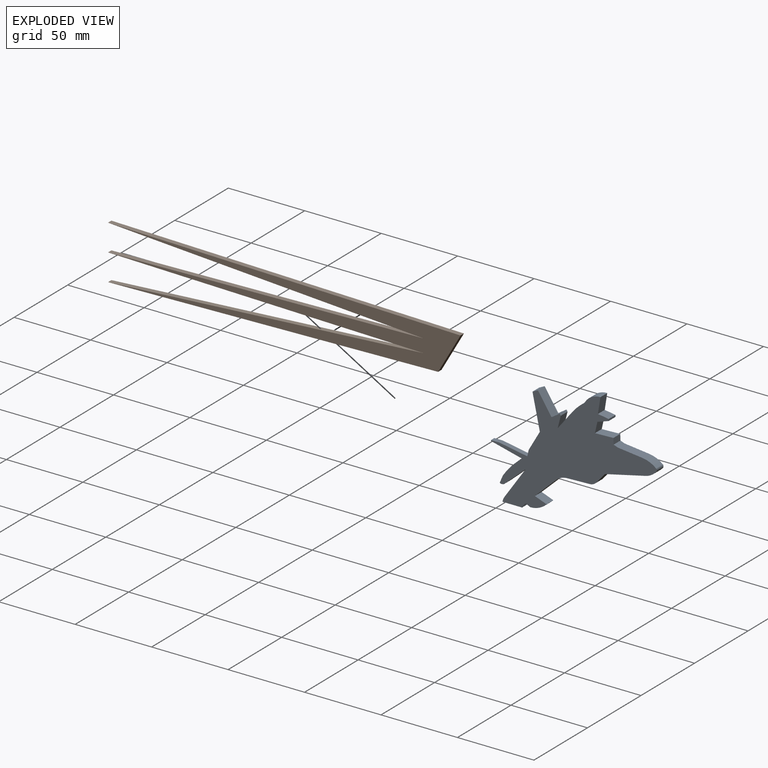
[diagram: subassembly S0 — exploded view]
SUBASSEMBLY S0 TOUR — 2 components, shown here in isolation at its own camera.

INTERNAL MATES
  1. FASTENED "Fastened 1": P1 <-> P0, direction (0.866, 0.000, -0.500) through (131.01, -44.78, 81.12) mm
  2. FASTENED "Fastened 1": P1 <-> P0, direction (0.866, 0.000, -0.500) through (131.01, -44.78, 81.12) mm

ASSEMBLY ORDER (within the subassembly)
  1. P0 — the base component [order verified]
  2. P1 [order verified]
Order-tag legend:
  [order verified] — this step's position reverses a verified removal order: the component was checked to insert without passing through the ones already placed.
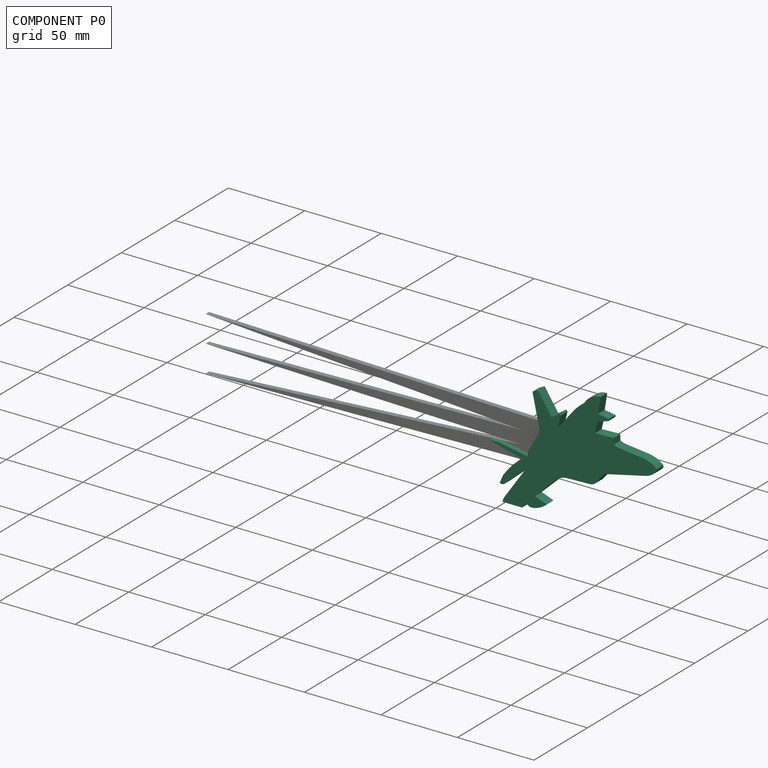
[diagram: component P0 — assembled]
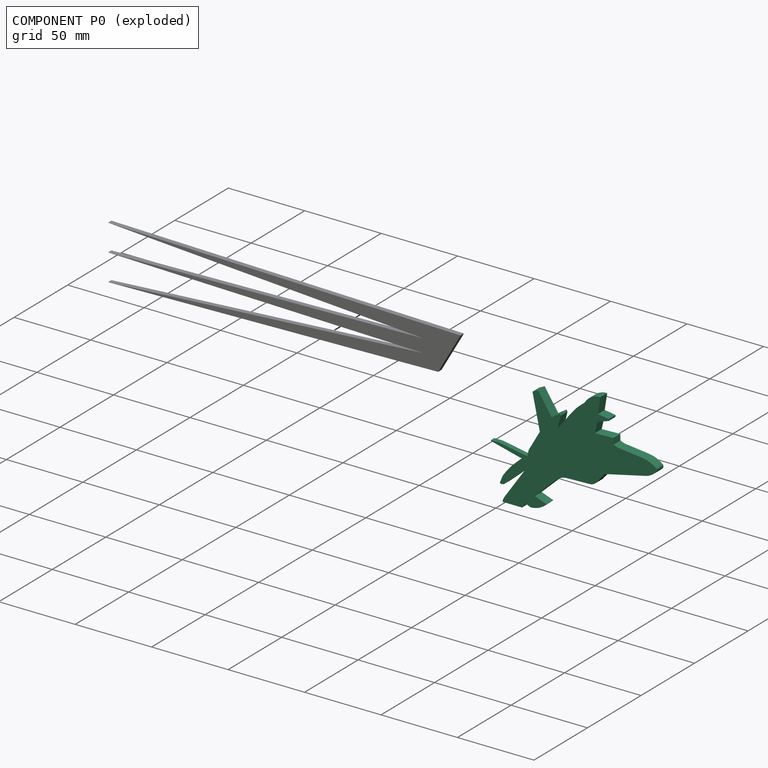
[diagram: component P0 — exploded]
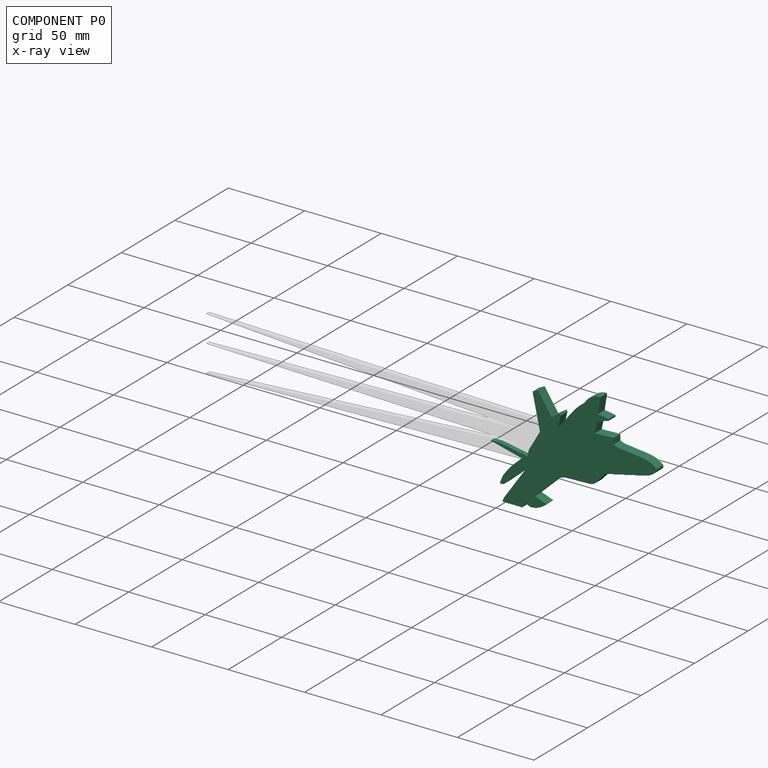
[diagram: component P0 — x-ray view]
COMPONENT P0 — recipe-attached (CADFS 00996909, mesh-verified: the recipe's output STEP matches this component's geometry to below the mesh-comparison resolution (tessellation chordal tolerance ~0.201 mm)).
Held by: FASTENED mate "Fastened 1" to P1; FASTENED mate "Fastened 1" to P1.
Construction recipe (FeatureScript — the CAD program that rebuilds this solid; sketch coordinates are in the units given by the * unit suffixes, e.g. mm):

FeatureScript 1511;
import(path : "onshape/std/geometry.fs", version : "1511.0");
import(path : "onshape/std/common.fs", version : "1511.0");
const mm = millimeter;
const VERTEX = EntityType.VERTEX;
const EDGE = EntityType.EDGE;
const FACE = EntityType.FACE;
const BODY = EntityType.BODY;
function v(x, y){return vector(x, y);}
function OD(order){return orderDisambiguation(order);}
function OSD(set){return originalSetDisambiguation(set);}
function TD(topology){return topologyDisambiguation(topology);}
function TDD(query){return trueDependencyDisambiguation(query);}
function sQuery(a, b, c) {return sketchEntityQuery(a, b, c);}

annotation { "Feature Type Name" : "Feature", "Feature Type Description" : "" }
export const myFeature = defineFeature(function(context is Context, id is Id, definition is map)
    precondition{}
    {
        {
            var Q0;
            Q0=qCreatedBy(makeId("Front.planeOp"),FACE);
            var sketch = newSketch(context, id + "F0", { "sketchPlane" : qUnion([Q0])});
            skLineSegment(sketch, "E0", {"start": v(-31.83, -6.62) * mm, "end": v(-24.5, 6.08) * mm});
            skLineSegment(sketch, "E1", {"start": v(-24.5, 6.08) * mm, "end": v(-29.32, 28.52) * mm});
            skLineSegment(sketch, "E2", {"start": v(-29.32, 28.52) * mm, "end": v(-25.77, 30.29) * mm});
            skLineSegment(sketch, "E3", {"start": v(-25.77, 30.29) * mm, "end": v(-16.87, 16.76) * mm});
            skLineSegment(sketch, "E4", {"start": v(-16.87, 16.76) * mm, "end": v(-11.52, 20.28) * mm});
            skLineSegment(sketch, "E5", {"start": v(-11.52, 20.28) * mm, "end": v(-10.82, 19.22) * mm});
            skLineSegment(sketch, "E6", {"start": v(-10.82, 19.22) * mm, "end": v(-12.8, 11.37) * mm});
            skLineSegment(sketch, "E7", {"start": v(-12.8, 11.37) * mm, "end": v(-3.28, 23.46) * mm});
            skArc(sketch, "E8", {"start": v(4.67, 30.93) * mm, "mid": v(0.41, 27.5) * mm, "end": v(-3.28, 23.46) * mm});
            skArc(sketch, "E9", {"start": v(15.12, 37.16) * mm, "mid": v(9.03, 35.5) * mm, "end": v(4.67, 30.93) * mm});
            skLineSegment(sketch, "E10", {"start": v(15.12, 37.16) * mm, "end": v(13.48, 26.79) * mm});
            skLineSegment(sketch, "E11", {"start": v(13.48, 26.79) * mm, "end": v(20.5, 25.68) * mm});
            skLineSegment(sketch, "E12", {"start": v(20.5, 25.68) * mm, "end": v(20.5, 24.48) * mm});
            skLineSegment(sketch, "E13", {"start": v(20.5, 24.48) * mm, "end": v(13.12, 22.05) * mm});
            skLineSegment(sketch, "E14", {"start": v(13.12, 22.05) * mm, "end": v(11.53, 14.9) * mm});
            skLineSegment(sketch, "E15", {"start": v(11.53, 14.9) * mm, "end": v(23.64, 15.31) * mm});
            skLineSegment(sketch, "E16", {"start": v(23.64, 15.31) * mm, "end": v(23.77, 11.4) * mm});
            skLineSegment(sketch, "E17", {"start": v(23.77, 11.4) * mm, "end": v(26.46, 10.4) * mm});
            skLineSegment(sketch, "E18", {"start": v(26.46, 10.4) * mm, "end": v(42.75, 8.56) * mm});
            skArc(sketch, "E19", {"start": v(51.59, 4.7) * mm, "mid": v(47.46, 7.3) * mm, "end": v(42.75, 8.56) * mm});
            skArc(sketch, "E20", {"start": v(51.59, 2.7) * mm, "mid": v(51.88, 3.7) * mm, "end": v(51.59, 4.7) * mm});
            skArc(sketch, "E21", {"start": v(44.15, -1.6) * mm, "mid": v(48.24, -0.1) * mm, "end": v(51.59, 2.7) * mm});
            skLineSegment(sketch, "E22", {"start": v(44.15, -1.6) * mm, "end": v(18.14, -7.5) * mm});
            skLineSegment(sketch, "E23", {"start": v(18.14, -7.5) * mm, "end": v(12.4, -14.08) * mm});
            skArc(sketch, "E24", {"start": v(8.16, -16.1) * mm, "mid": v(10.49, -15.53) * mm, "end": v(12.4, -14.08) * mm});
            skLineSegment(sketch, "E25", {"start": v(8.16, -16.1) * mm, "end": v(-7.38, -16.6) * mm});
            skArc(sketch, "E26", {"start": v(-7.38, -16.6) * mm, "mid": v(-10.88, -17.59) * mm, "end": v(-13.9, -19.63) * mm});
            skLineSegment(sketch, "E27", {"start": v(-13.9, -19.63) * mm, "end": v(-27.78, -32.74) * mm});
            skLineSegment(sketch, "E28", {"start": v(-27.78, -32.74) * mm, "end": v(-20.07, -35.6) * mm});
            skArc(sketch, "E29", {"start": v(-30.81, -40.18) * mm, "mid": v(-24.99, -38.96) * mm, "end": v(-20.07, -35.6) * mm});
            skLineSegment(sketch, "E30", {"start": v(-30.81, -40.18) * mm, "end": v(-33.58, -38.72) * mm});
            skLineSegment(sketch, "E31", {"start": v(-33.58, -38.72) * mm, "end": v(-46.76, -50.69) * mm});
            skArc(sketch, "E32", {"start": v(-49.29, -51.48) * mm, "mid": v(-47.94, -51.36) * mm, "end": v(-46.76, -50.69) * mm});
            skLineSegment(sketch, "E33", {"start": v(-49.29, -51.48) * mm, "end": v(-52.27, -49.73) * mm});
            skLineSegment(sketch, "E34", {"start": v(-52.27, -49.73) * mm, "end": v(-48.1, -39.25) * mm});
            skLineSegment(sketch, "E35", {"start": v(-48.1, -39.25) * mm, "end": v(-33.9, -18.7) * mm});
            skLineSegment(sketch, "E36", {"start": v(-33.9, -18.7) * mm, "end": v(-47.44, -30.71) * mm});
            skArc(sketch, "E37", {"start": v(-50.76, -31.15) * mm, "mid": v(-49.03, -31.44) * mm, "end": v(-47.44, -30.71) * mm});
            skLineSegment(sketch, "E38", {"start": v(-50.76, -31.15) * mm, "end": v(-48.78, -26.37) * mm});
            skArc(sketch, "E39", {"start": v(-42.7, -18.7) * mm, "mid": v(-45.89, -22.42) * mm, "end": v(-48.78, -26.37) * mm});
            skLineSegment(sketch, "E40", {"start": v(-42.7, -18.7) * mm, "end": v(-36.44, -12.83) * mm});
            skLineSegment(sketch, "E41", {"start": v(-36.44, -12.83) * mm, "end": v(-56.45, -7.89) * mm});
            skLineSegment(sketch, "E42", {"start": v(-56.45, -7.89) * mm, "end": v(-56.45, -7.36) * mm});
            skLineSegment(sketch, "E43", {"start": v(-56.45, -7.36) * mm, "end": v(-51.06, -7.36) * mm});
            skLineSegment(sketch, "E44", {"start": v(-51.06, -7.36) * mm, "end": v(-32.68, -10.58) * mm});
            skLineSegment(sketch, "E45", {"start": v(-32.68, -10.58) * mm, "end": v(-31.83, -6.62) * mm});
            skLineSegment(sketch, "E46", {"start": v(-31.83, -6.62) * mm, "end": v(0, -6.62) * mm, "construction": true});
            skSolve(sketch);
        }
        {
            var Q0;
            Q0 = qSketchRegion(id + "F0", true);
            extrude(context, id + "F1", {"entities" : qUnion([Q0]), "depth" : 6.35 * mm, "offsetDistance" : 25.4 * mm});
        }
        {
            var Q0;
            Q0=makeQuery(id+"F1.opExtrude","CAP_FACE",FACE,{"disambiguationData":[OSD([sQuery(id+"F0.wireOp",EDGE,"E0"),sQuery(id+"F0.wireOp",EDGE,"E1"),sQuery(id+"F0.wireOp",EDGE,"E2"),sQuery(id+"F0.wireOp",EDGE,"E3"),sQuery(id+"F0.wireOp",EDGE,"E4"),sQuery(id+"F0.wireOp",EDGE,"E5"),sQuery(id+"F0.wireOp",EDGE,"E6"),sQuery(id+"F0.wireOp",EDGE,"E7"),sQuery(id+"F0.wireOp",EDGE,"E8"),sQuery(id+"F0.wireOp",EDGE,"E9"),sQuery(id+"F0.wireOp",EDGE,"E10"),sQuery(id+"F0.wireOp",EDGE,"E11"),sQuery(id+"F0.wireOp",EDGE,"E12"),sQuery(id+"F0.wireOp",EDGE,"E13"),sQuery(id+"F0.wireOp",EDGE,"E14"),sQuery(id+"F0.wireOp",EDGE,"E15"),sQuery(id+"F0.wireOp",EDGE,"E16"),sQuery(id+"F0.wireOp",EDGE,"E17"),sQuery(id+"F0.wireOp",EDGE,"E18"),sQuery(id+"F0.wireOp",EDGE,"E19"),sQuery(id+"F0.wireOp",EDGE,"E20"),sQuery(id+"F0.wireOp",EDGE,"E21"),sQuery(id+"F0.wireOp",EDGE,"E22"),sQuery(id+"F0.wireOp",EDGE,"E23"),sQuery(id+"F0.wireOp",EDGE,"E24"),sQuery(id+"F0.wireOp",EDGE,"E25"),sQuery(id+"F0.wireOp",EDGE,"E26"),sQuery(id+"F0.wireOp",EDGE,"E27"),sQuery(id+"F0.wireOp",EDGE,"E28"),sQuery(id+"F0.wireOp",EDGE,"E29"),sQuery(id+"F0.wireOp",EDGE,"E30"),sQuery(id+"F0.wireOp",EDGE,"E31"),sQuery(id+"F0.wireOp",EDGE,"E32"),sQuery(id+"F0.wireOp",EDGE,"E33"),sQuery(id+"F0.wireOp",EDGE,"E34"),sQuery(id+"F0.wireOp",EDGE,"E35"),sQuery(id+"F0.wireOp",EDGE,"E36"),sQuery(id+"F0.wireOp",EDGE,"E37"),sQuery(id+"F0.wireOp",EDGE,"E38"),sQuery(id+"F0.wireOp",EDGE,"E39"),sQuery(id+"F0.wireOp",EDGE,"E40"),sQuery(id+"F0.wireOp",EDGE,"E41"),sQuery(id+"F0.wireOp",EDGE,"E42"),sQuery(id+"F0.wireOp",EDGE,"E43"),sQuery(id+"F0.wireOp",EDGE,"E44"),sQuery(id+"F0.wireOp",EDGE,"E45")])],"isStart":false});
            var sketch = newSketch(context, id + "F2", { "sketchPlane" : qUnion([Q0])});
            skLineSegment(sketch, "E47", {"start": v(-36.1, -41.02) * mm, "end": v(-36.1, -51.5) * mm});
            skLineSegment(sketch, "E48", {"start": v(-36.1, -51.5) * mm, "end": v(-61.5, -51.5) * mm});
            skLineSegment(sketch, "E49", {"start": v(-61.5, -41.02) * mm, "end": v(-61.5, -51.5) * mm});
            skLineSegment(sketch, "E50", {"start": v(-36.1, -41.02) * mm, "end": v(-48.8, -41.02) * mm});
            skLineSegment(sketch, "E51", {"start": v(-48.8, -41.02) * mm, "end": v(-61.5, -41.02) * mm});
            skSolve(sketch);
        }
        {
            var Q0;
            Q0 = qSketchRegion(id + "F2", true);
            extrude(context, id + "F3", {"entities" : qUnion([Q0]), "operationType" : NewBodyOperationType.REMOVE, "endBound" : BoundingType.THROUGH_ALL, "oppositeDirection" : true, "depth" : 25.4 * mm, "offsetDistance" : 25.4 * mm});
        }
        {
            var Q0;
            Q0=makeQuery(id+"F1.opExtrude","CAP_FACE",FACE,{"disambiguationData":[OSD([sQuery(id+"F0.wireOp",EDGE,"E0"),sQuery(id+"F0.wireOp",EDGE,"E1"),sQuery(id+"F0.wireOp",EDGE,"E2"),sQuery(id+"F0.wireOp",EDGE,"E3"),sQuery(id+"F0.wireOp",EDGE,"E4"),sQuery(id+"F0.wireOp",EDGE,"E5"),sQuery(id+"F0.wireOp",EDGE,"E6"),sQuery(id+"F0.wireOp",EDGE,"E7"),sQuery(id+"F0.wireOp",EDGE,"E8"),sQuery(id+"F0.wireOp",EDGE,"E9"),sQuery(id+"F0.wireOp",EDGE,"E10"),sQuery(id+"F0.wireOp",EDGE,"E11"),sQuery(id+"F0.wireOp",EDGE,"E12"),sQuery(id+"F0.wireOp",EDGE,"E13"),sQuery(id+"F0.wireOp",EDGE,"E14"),sQuery(id+"F0.wireOp",EDGE,"E15"),sQuery(id+"F0.wireOp",EDGE,"E16"),sQuery(id+"F0.wireOp",EDGE,"E17"),sQuery(id+"F0.wireOp",EDGE,"E18"),sQuery(id+"F0.wireOp",EDGE,"E19"),sQuery(id+"F0.wireOp",EDGE,"E20"),sQuery(id+"F0.wireOp",EDGE,"E21"),sQuery(id+"F0.wireOp",EDGE,"E22"),sQuery(id+"F0.wireOp",EDGE,"E23"),sQuery(id+"F0.wireOp",EDGE,"E24"),sQuery(id+"F0.wireOp",EDGE,"E25"),sQuery(id+"F0.wireOp",EDGE,"E26"),sQuery(id+"F0.wireOp",EDGE,"E27"),sQuery(id+"F0.wireOp",EDGE,"E28"),sQuery(id+"F0.wireOp",EDGE,"E29"),sQuery(id+"F0.wireOp",EDGE,"E30"),sQuery(id+"F0.wireOp",EDGE,"E31"),sQuery(id+"F0.wireOp",EDGE,"E32"),sQuery(id+"F0.wireOp",EDGE,"E33"),sQuery(id+"F0.wireOp",EDGE,"E34"),sQuery(id+"F0.wireOp",EDGE,"E35"),sQuery(id+"F0.wireOp",EDGE,"E36"),sQuery(id+"F0.wireOp",EDGE,"E37"),sQuery(id+"F0.wireOp",EDGE,"E38"),sQuery(id+"F0.wireOp",EDGE,"E39"),sQuery(id+"F0.wireOp",EDGE,"E40"),sQuery(id+"F0.wireOp",EDGE,"E41"),sQuery(id+"F0.wireOp",EDGE,"E42"),sQuery(id+"F0.wireOp",EDGE,"E43"),sQuery(id+"F0.wireOp",EDGE,"E44"),sQuery(id+"F0.wireOp",EDGE,"E45")])],"isStart":true});
            var sketch = newSketch(context, id + "F4", { "sketchPlane" : qUnion([Q0])});
            skLineSegment(sketch, "E52", {"start": v(14.56, 10.6) * mm, "end": v(29.45, -15.19) * mm});
            skLineSegment(sketch, "E53", {"start": v(56.45, -15.9) * mm, "end": v(56.45, 11.32) * mm});
            skLineSegment(sketch, "E54", {"start": v(32.68, -10.58) * mm, "end": v(32.68, -15.27) * mm, "construction": true});
            skLineSegment(sketch, "E55", {"start": v(24.5, 6.08) * mm, "end": v(24.5, 10.78) * mm, "construction": true});
            skLineSegment(sketch, "E56", {"start": v(14.56, 10.6) * mm, "end": v(56.45, 11.32) * mm});
            skLineSegment(sketch, "E57", {"start": v(29.45, -15.19) * mm, "end": v(56.45, -15.9) * mm});
            skLineSegment(sketch, "E58", {"start": v(29.45, -15.19) * mm, "end": v(99.07, -15.19) * mm, "construction": true});
            skLineSegment(sketch, "E59", {"start": v(14.56, 10.6) * mm, "end": v(99.07, 10.6) * mm, "construction": true});
            skLineSegment(sketch, "E60", {"start": v(56.45, 11.32) * mm, "end": v(99.07, 10.6) * mm, "construction": true});
            skLineSegment(sketch, "E61", {"start": v(99.07, -15.19) * mm, "end": v(56.45, -15.9) * mm, "construction": true});
            skSolve(sketch);
        }
        {
            var Q0;
            Q0 = qSketchRegion(id + "F4", true);
            extrude(context, id + "F5", {"entities" : qUnion([Q0]), "operationType" : NewBodyOperationType.REMOVE, "oppositeDirection" : true, "depth" : 3.17 * mm, "offsetDistance" : 25.4 * mm});
        }
        {
            var Q0;
            Q0=makeQuery(id+"F3.boolean.opBoolean","COPY",FACE,{"derivedFrom":makeQuery(id+"F3.opExtrude","SWEPT_FACE",FACE,{"disambiguationData":[OSD([sQuery(id+"F2.wireOp",EDGE,"E50"),sQuery(id+"F2.wireOp",EDGE,"E51")])]})});
            var sketch = newSketch(context, id + "F6", { "sketchPlane" : qUnion([Q0])});
            skLineSegment(sketch, "E62.bottom", {"start": v(-48.8, 6.35) * mm, "end": v(-36.1, 6.35) * mm});
            skLineSegment(sketch, "E62.top", {"start": v(-48.8, 0) * mm, "end": v(-36.1, 0) * mm});
            skLineSegment(sketch, "E62.left", {"start": v(-48.8, 6.35) * mm, "end": v(-48.8, 0) * mm});
            skLineSegment(sketch, "E62.right", {"start": v(-36.1, 6.35) * mm, "end": v(-36.1, 0) * mm});
            skSolve(sketch);
        }
        {
            var Q0;
            Q0 = qSketchRegion(id + "F6", true);
            extrude(context, id + "F7", {"entities" : qUnion([Q0]), "operationType" : NewBodyOperationType.ADD, "depth" : 0.8 * mm, "offsetDistance" : 25.4 * mm});
        }
    });
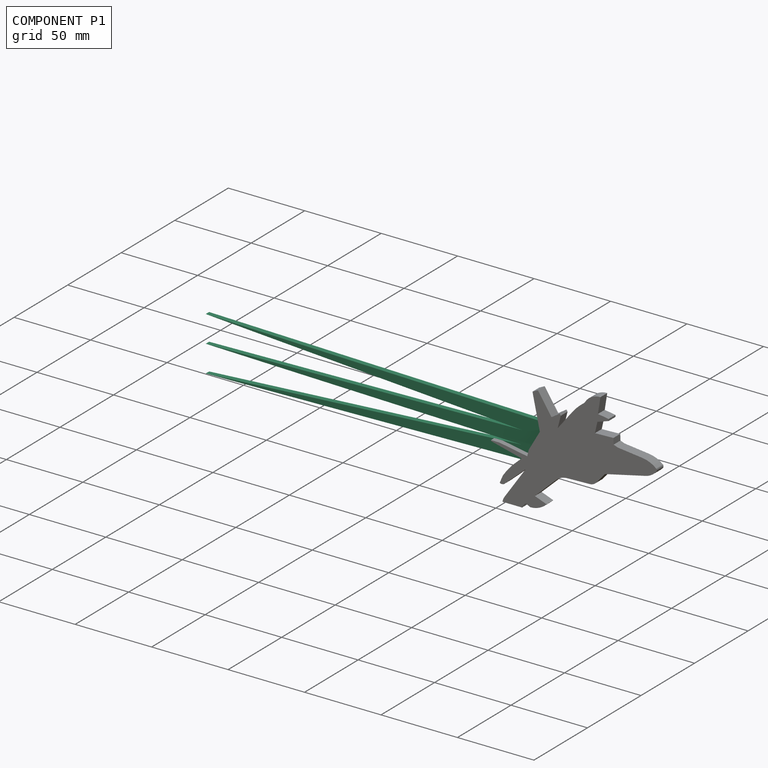
[diagram: component P1 — assembled]
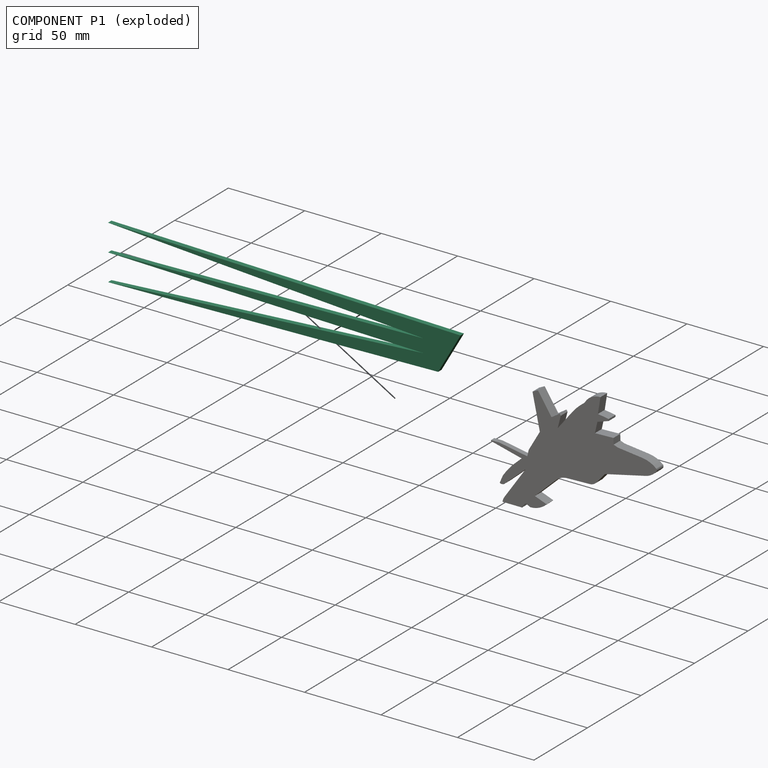
[diagram: component P1 — exploded]
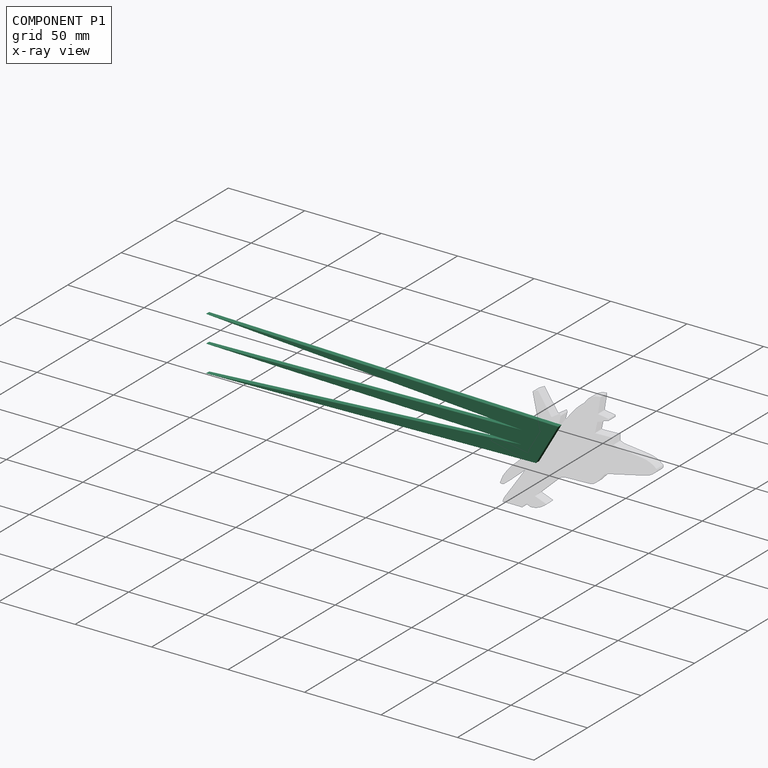
[diagram: component P1 — x-ray view]
COMPONENT P1 — recipe-attached (CADFS 00996908, mesh-verified: the recipe's output STEP matches this component's geometry to below the mesh-comparison resolution (tessellation chordal tolerance ~0.35 mm)).
Held by: FASTENED mate "Fastened 1" to P0; FASTENED mate "Fastened 1" to P0.
Construction recipe (FeatureScript — the CAD program that rebuilds this solid; sketch coordinates are in the units given by the * unit suffixes, e.g. mm):

FeatureScript 1511;
import(path : "onshape/std/geometry.fs", version : "1511.0");
import(path : "onshape/std/common.fs", version : "1511.0");
const mm = millimeter;
const VERTEX = EntityType.VERTEX;
const EDGE = EntityType.EDGE;
const FACE = EntityType.FACE;
const BODY = EntityType.BODY;
function v(x, y){return vector(x, y);}
function OD(order){return orderDisambiguation(order);}
function OSD(set){return originalSetDisambiguation(set);}
function TD(topology){return topologyDisambiguation(topology);}
function TDD(query){return trueDependencyDisambiguation(query);}
function sQuery(a, b, c) {return sketchEntityQuery(a, b, c);}

annotation { "Feature Type Name" : "Feature", "Feature Type Description" : "" }
export const myFeature = defineFeature(function(context is Context, id is Id, definition is map)
    precondition{}
    {
        {
            var Q0;
            Q0=qCreatedBy(makeId("Top.planeOp"),FACE);
            var sketch = newSketch(context, id + "F0", { "sketchPlane" : qUnion([Q0])});
            skLineSegment(sketch, "E0", {"start": v(-7.42, -12.86) * mm, "end": v(-223.32, -17.57) * mm});
            skLineSegment(sketch, "E1", {"start": v(-223.32, -17.57) * mm, "end": v(-16.95, -4.36) * mm});
            skLineSegment(sketch, "E2", {"start": v(-16.95, -4.36) * mm, "end": v(-223.32, 0) * mm});
            skLineSegment(sketch, "E3", {"start": v(-223.32, 0) * mm, "end": v(-16.95, 4.36) * mm});
            skLineSegment(sketch, "E4", {"start": v(-16.95, 4.36) * mm, "end": v(-223.32, 17.57) * mm});
            skLineSegment(sketch, "E5", {"start": v(-223.32, 17.57) * mm, "end": v(7.24, 12.54) * mm});
            skLineSegment(sketch, "E6", {"start": v(-223.32, 0) * mm, "end": v(-223.32, -17.57) * mm, "construction": true});
            skLineSegment(sketch, "E7", {"start": v(-223.32, 17.57) * mm, "end": v(-223.32, 0) * mm, "construction": true});
            skLineSegment(sketch, "E8", {"start": v(-7.42, -12.86) * mm, "end": v(7.24, 12.54) * mm});
            skLineSegment(sketch, "E9", {"start": v(-7.42, -12.86) * mm, "end": v(114.14, -12.86) * mm, "construction": true});
            skLineSegment(sketch, "E10", {"start": v(-16.95, 4.36) * mm, "end": v(-16.4, 13.06) * mm, "construction": true});
            skLineSegment(sketch, "E11", {"start": v(-16.95, -4.36) * mm, "end": v(-16.4, -13.06) * mm, "construction": true});
            skLineSegment(sketch, "E12", {"start": v(-16.95, 4.36) * mm, "end": v(-16.95, -4.36) * mm, "construction": true});
            skSolve(sketch);
        }
        {
            var Q0;
            Q0 = qSketchRegion(id + "F0", true);
            extrude(context, id + "F1", {"entities" : qUnion([Q0]), "endBound" : BoundingType.SYMMETRIC, "depth" : 3.17 * mm, "offsetDistance" : 25.4 * mm});
        }
    });
PROVENANCE & LICENSES
Assembly (occurrences, transforms, mates, per-part STEP geometry): AutoMate dataset, Zenodo record 7776208, CC0.
Construction recipes: CADFS (HuggingFace VladPyatov/CADFS, CC-BY-4.0, layered over the ABC dataset), FeatureScript reconstruction programs keyed by ABC model id.
Join: ABC meta listings map ABC model id -> Onshape documentId; within a shared document, parts are matched by geometric signature (bounding-box dims + volume at 0.1% relative tolerance, exact B-rep face/solid counts).
Verification: 4 of this assembly's 6 components carry a recipe attachment, and every attachment is mesh-verified: the CADFS STEP and the AutoMate member STEP were compared as meshes in their shared local frame (symmetric sampled-point-to-mesh distance); worst across the 4 attachments: below the mesh-comparison resolution (tessellation chordal tolerance ~0.35 mm) on a 233 mm part.
Renders: orthographic iso camera (az 35 / el 25); the floor grid conveys scale (grid pitch printed in each image; no ruler). In the exploded view each component is displaced by its stored offset vector: the offsets alone carry the explosion direction (mate normal/axis signs are not orientation cues and do not encode it), and separation distances are assigned per mate-chain, not proportionally to assembly-order depth.
